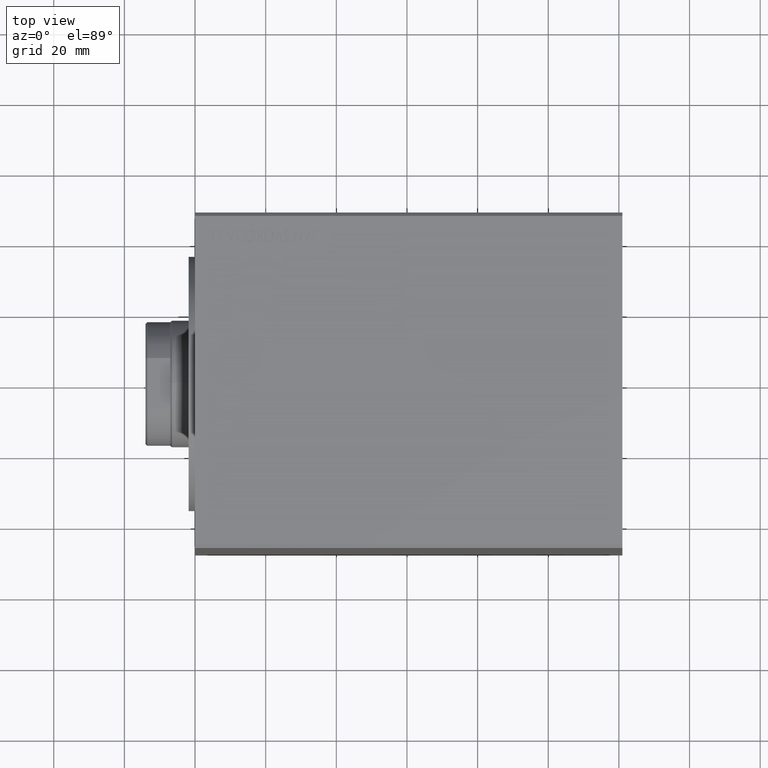
[diagram: clean part render]
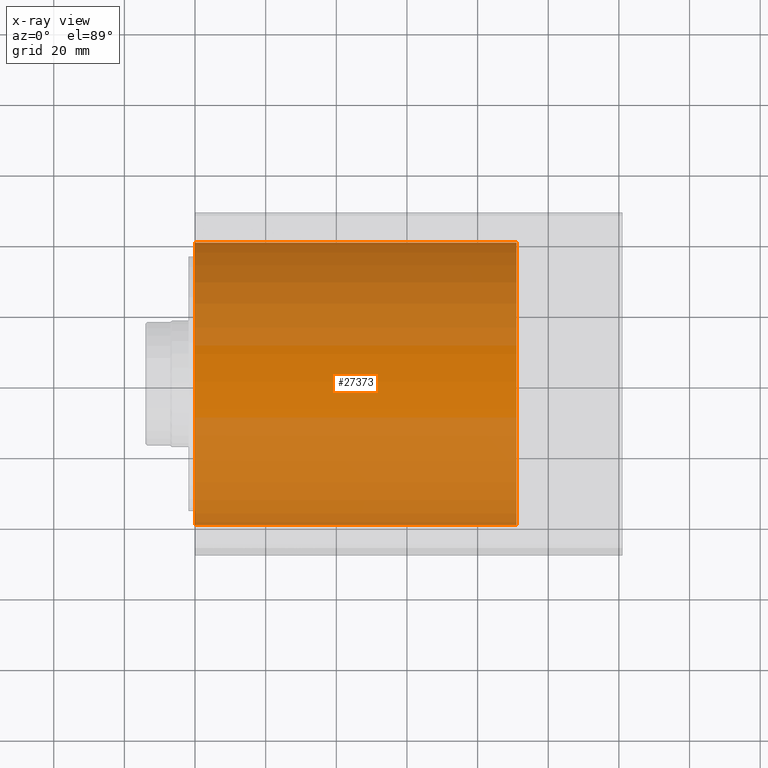
[diagram: x-ray — body ghosted, one internal face saturated and labeled with its STEP entity id]
A machine part, top view, then the same camera in x-ray: the body is ghosted and one INTERNAL B-rep face — a face not visible from any outside direction — is saturated and labeled: STEP entity #27373.
In plain terms, the highlighted cylindrical surface (partial cylindrical patch) has radius 40 mm, axis along (1, -0, 0).
Its self-contained STEP definition (entity closure, byte-faithful):
#1158 = ORIENTED_EDGE ( 'NONE', *, *, #27466, .F. ) ;
#2293 = EDGE_CURVE ( 'NONE', #24178, #37172, #14638, .T. ) ;
#2507 = DIRECTION ( 'NONE',  ( -1.000000000000000000, 0.000000000000000000, 0.000000000000000000 ) ) ;
#3613 = LINE ( 'NONE', #43883, #39075 ) ;
#4051 = CARTESIAN_POINT ( 'NONE',  ( -40.00000000000000000, 0.000000000000000000, 91.00000000000000000 ) ) ;
#4215 = AXIS2_PLACEMENT_3D ( 'NONE', #33821, #16943, #7355 ) ;
#7355 = DIRECTION ( 'NONE',  ( 1.000000000000000000, 0.000000000000000000, 0.000000000000000000 ) ) ;
#10737 = EDGE_CURVE ( 'NONE', #24178, #27167, #32628, .T. ) ;
#11889 = ORIENTED_EDGE ( 'NONE', *, *, #25891, .T. ) ;
#14211 = DIRECTION ( 'NONE',  ( -0.000000000000000000, -0.000000000000000000, -1.000000000000000000 ) ) ;
#14638 = LINE ( 'NONE', #34220, #22455 ) ;
#15888 = FACE_OUTER_BOUND ( 'NONE', #43726, .T. ) ;
#16377 = AXIS2_PLACEMENT_3D ( 'NONE', #25278, #22989, #2507 ) ;
#16943 = DIRECTION ( 'NONE',  ( 0.000000000000000000, 0.000000000000000000, 1.000000000000000000 ) ) ;
#17056 = ORIENTED_EDGE ( 'NONE', *, *, #10737, .F. ) ;
#18453 = CARTESIAN_POINT ( 'NONE',  ( 40.00000000000000000, 4.898587196589413026E-15, 91.00000000000000000 ) ) ;
#19813 = CARTESIAN_POINT ( 'NONE',  ( 0.000000000000000000, 0.000000000000000000, 0.000000000000000000 ) ) ;
#22455 = VECTOR ( 'NONE', #14211, 1000.000000000000000 ) ;
#22989 = DIRECTION ( 'NONE',  ( -0.000000000000000000, -0.000000000000000000, -1.000000000000000000 ) ) ;
#24107 = DIRECTION ( 'NONE',  ( -0.000000000000000000, -0.000000000000000000, -1.000000000000000000 ) ) ;
#24178 = VERTEX_POINT ( 'NONE', #4051 ) ;
#25278 = CARTESIAN_POINT ( 'NONE',  ( 0.000000000000000000, 0.000000000000000000, 91.00000000000000000 ) ) ;
#25891 = EDGE_CURVE ( 'NONE', #37172, #31324, #32669, .T. ) ;
#26538 = CYLINDRICAL_SURFACE ( 'NONE', #16377, 40.00000000000000000 ) ;
#27167 = VERTEX_POINT ( 'NONE', #18453 ) ;
#27373 = ADVANCED_FACE ( 'NONE', ( #15888 ), #26538, .T. ) ;
#27466 = EDGE_CURVE ( 'NONE', #27167, #31324, #3613, .T. ) ;
#29118 = ORIENTED_EDGE ( 'NONE', *, *, #2293, .T. ) ;
#29791 = DIRECTION ( 'NONE',  ( 0.000000000000000000, 0.000000000000000000, 1.000000000000000000 ) ) ;
#31324 = VERTEX_POINT ( 'NONE', #33214 ) ;
#32628 = CIRCLE ( 'NONE', #4215, 40.00000000000000000 ) ;
#32669 = CIRCLE ( 'NONE', #33371, 40.00000000000000000 ) ;
#33214 = CARTESIAN_POINT ( 'NONE',  ( 40.00000000000000000, 4.898587196589413026E-15, 0.000000000000000000 ) ) ;
#33371 = AXIS2_PLACEMENT_3D ( 'NONE', #19813, #29791, #43374 ) ;
#33821 = CARTESIAN_POINT ( 'NONE',  ( 0.000000000000000000, 0.000000000000000000, 91.00000000000000000 ) ) ;
#34220 = CARTESIAN_POINT ( 'NONE',  ( -40.00000000000000000, 0.000000000000000000, 91.00000000000000000 ) ) ;
#35909 = CARTESIAN_POINT ( 'NONE',  ( -40.00000000000000000, 0.000000000000000000, 0.000000000000000000 ) ) ;
#37172 = VERTEX_POINT ( 'NONE', #35909 ) ;
#39075 = VECTOR ( 'NONE', #24107, 1000.000000000000000 ) ;
#43374 = DIRECTION ( 'NONE',  ( 1.000000000000000000, 0.000000000000000000, 0.000000000000000000 ) ) ;
#43726 = EDGE_LOOP ( 'NONE', ( #1158, #17056, #29118, #11889 ) ) ;
#43883 = CARTESIAN_POINT ( 'NONE',  ( 40.00000000000000000, 4.898587196589413026E-15, 91.00000000000000000 ) ) ;